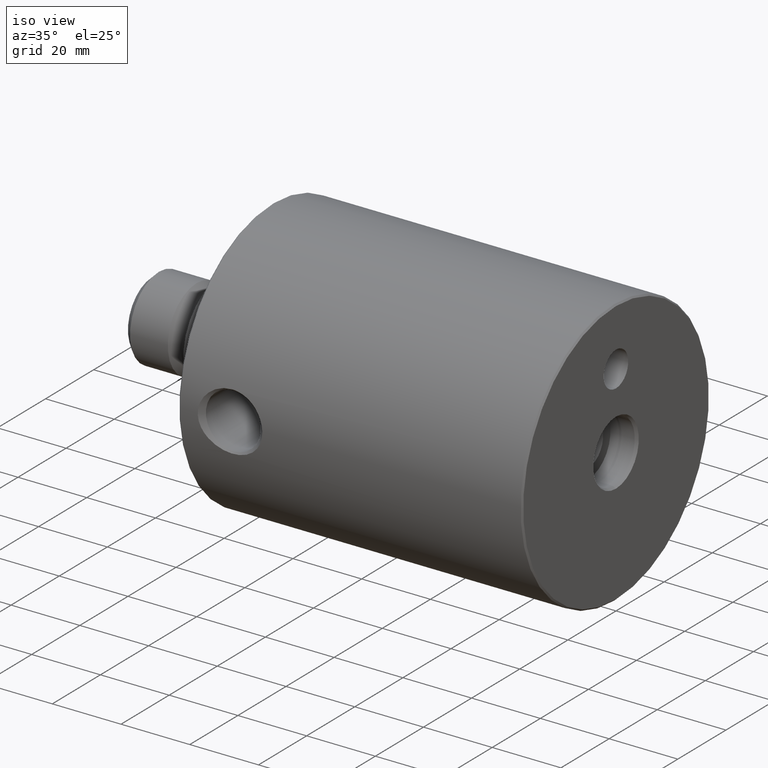
[diagram: clean part render]
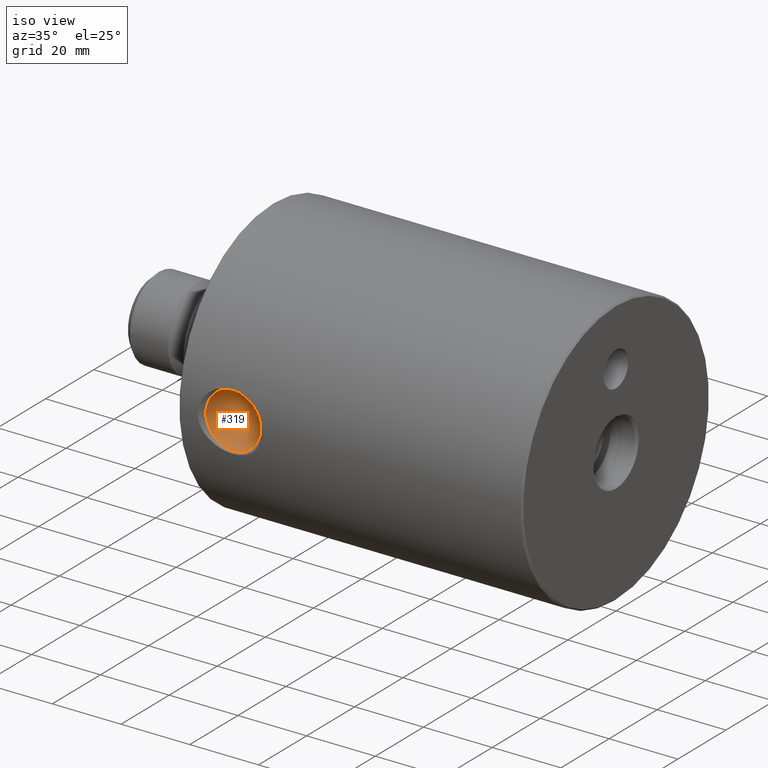
[diagram: same view with one face highlighted and labeled with its STEP entity id]
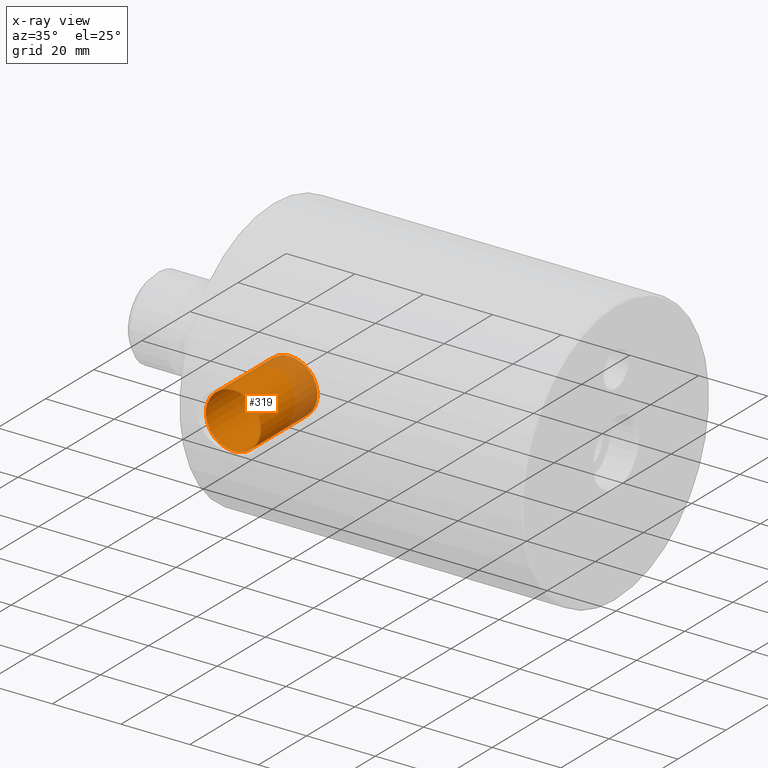
[diagram: x-ray of the same camera — body ghosted, the highlighted face saturated]
A machine part, iso view. The second image highlights one B-rep face of the part: STEP entity #319.
The next image is the same camera in x-ray: the body ghosted, the highlighted face saturated — about 23% of this face is hidden behind the body in this view.
In plain terms, the highlighted cylindrical surface (bore or boss wall) has radius 8 mm, axis along (0, -1, 0).
Its self-contained STEP definition (entity closure, byte-faithful):
#97 = DIRECTION ( 'NONE',  ( -0.0000000000000000000, 1.000000000000000000, -0.0000000000000000000 ) ) ;
#143 = FACE_OUTER_BOUND ( 'NONE', #928, .T. ) ;
#214 = DIRECTION ( 'NONE',  ( 0.0000000000000000000, 0.0000000000000000000, 1.000000000000000000 ) ) ;
#244 = CYLINDRICAL_SURFACE ( 'NONE', #696, 7.999999999999992900 ) ;
#250 = AXIS2_PLACEMENT_3D ( 'NONE', #519, #97, #775 ) ;
#276 = ORIENTED_EDGE ( 'NONE', *, *, #444, .F. ) ;
#319 = ADVANCED_FACE ( 'NONE', ( #143, #762 ), #244, .F. ) ;
#368 = ORIENTED_EDGE ( 'NONE', *, *, #602, .T. ) ;
#444 = EDGE_CURVE ( 'NONE', #999, #999, #677, .T. ) ;
#461 = CARTESIAN_POINT ( 'NONE',  ( -85.00000000000000000, -14.04999999999998600, 7.999999999999992900 ) ) ;
#507 = DIRECTION ( 'NONE',  ( 0.0000000000000000000, 0.0000000000000000000, 1.000000000000000000 ) ) ;
#519 = CARTESIAN_POINT ( 'NONE',  ( -85.00000000000000000, -14.04999999999998600, 0.0000000000000000000 ) ) ;
#526 = CARTESIAN_POINT ( 'NONE',  ( -85.00000000000000000, -41.99478222661611000, 0.0000000000000000000 ) ) ;
#587 = DIRECTION ( 'NONE',  ( 0.0000000000000000000, -1.000000000000000000, 0.0000000000000000000 ) ) ;
#602 = EDGE_CURVE ( 'NONE', #896, #896, #958, .T. ) ;
#677 = CIRCLE ( 'NONE', #829, 7.999999999999992900 ) ;
#696 = AXIS2_PLACEMENT_3D ( 'NONE', #526, #587, #507 ) ;
#762 = FACE_OUTER_BOUND ( 'NONE', #889, .T. ) ;
#775 = DIRECTION ( 'NONE',  ( 0.0000000000000000000, 0.0000000000000000000, 1.000000000000000000 ) ) ;
#811 = DIRECTION ( 'NONE',  ( -0.0000000000000000000, 1.000000000000000000, -0.0000000000000000000 ) ) ;
#829 = AXIS2_PLACEMENT_3D ( 'NONE', #906, #811, #214 ) ;
#889 = EDGE_LOOP ( 'NONE', ( #368 ) ) ;
#896 = VERTEX_POINT ( 'NONE', #461 ) ;
#906 = CARTESIAN_POINT ( 'NONE',  ( -85.00000000000000000, -37.60999999999999200, 0.0000000000000000000 ) ) ;
#928 = EDGE_LOOP ( 'NONE', ( #276 ) ) ;
#958 = CIRCLE ( 'NONE', #250, 7.999999999999992900 ) ;
#984 = CARTESIAN_POINT ( 'NONE',  ( -85.00000000000000000, -37.60999999999999200, 7.999999999999992900 ) ) ;
#999 = VERTEX_POINT ( 'NONE', #984 ) ;